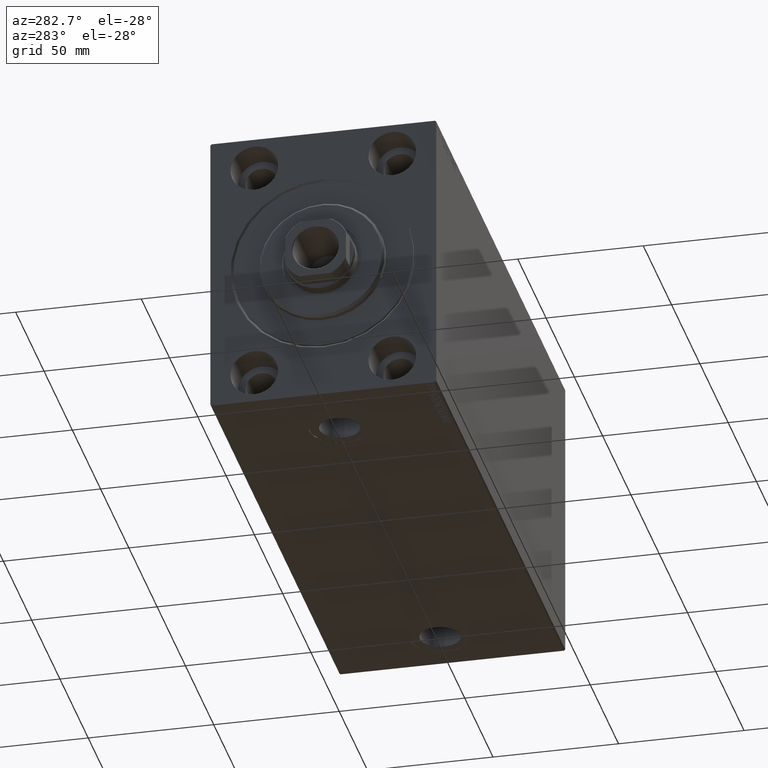
[diagram: clean part render]
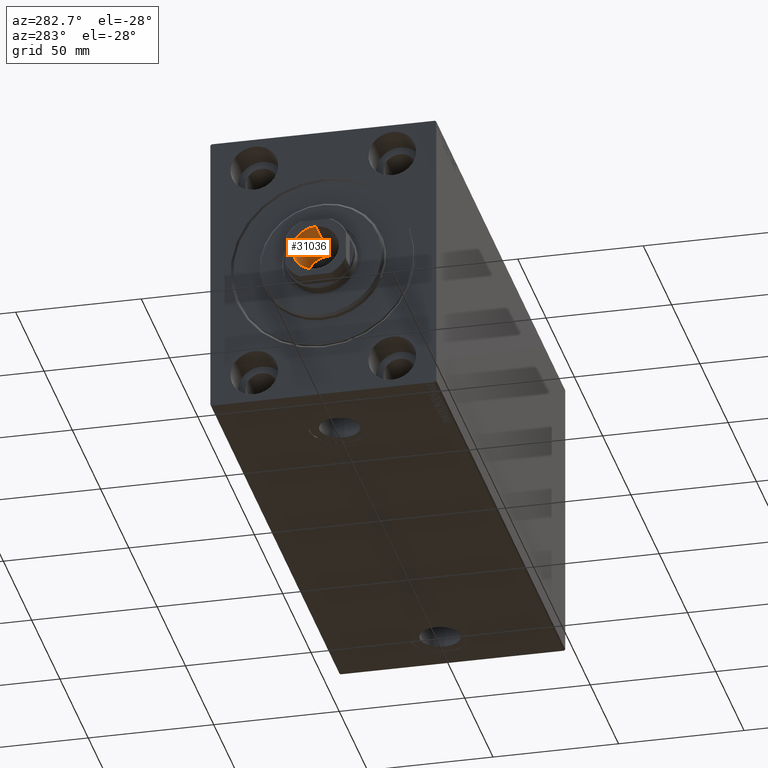
[diagram: same view with one face highlighted and labeled with its STEP entity id]
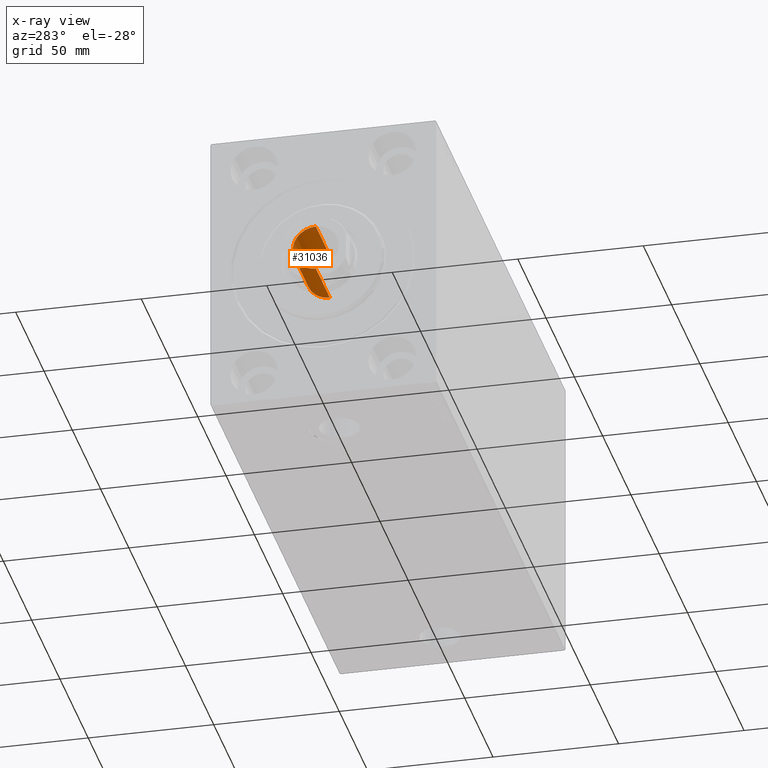
[diagram: x-ray of the same camera — body ghosted, the highlighted face saturated]
A machine part, auxiliary view. The second image highlights one B-rep face of the part: STEP entity #31036.
The next image is the same camera in x-ray: the body ghosted, the highlighted face saturated — about 0% of this face is hidden behind the body in this view.
In plain terms, the highlighted cylindrical surface (edge-blend (fillet) strip) has radius 9.25 mm, axis along (-1, 0, 0).
Its self-contained STEP definition (entity closure, byte-faithful):
#1381 = ORIENTED_EDGE ( 'NONE', *, *, #1982, .T. ) ;
#1402 = LINE ( 'NONE', #19475, #16521 ) ;
#1982 = EDGE_CURVE ( 'NONE', #8960, #21869, #34254, .T. ) ;
#2321 = EDGE_CURVE ( 'NONE', #21869, #3612, #25929, .T. ) ;
#3612 = VERTEX_POINT ( 'NONE', #28458 ) ;
#4010 = DIRECTION ( 'NONE',  ( -0.000000000000000000, -0.000000000000000000, 1.000000000000000000 ) ) ;
#6648 = CARTESIAN_POINT ( 'NONE',  ( 0.000000000000000000, 0.000000000000000000, 223.7000000000000455 ) ) ;
#7151 = CARTESIAN_POINT ( 'NONE',  ( 0.000000000000000000, 0.000000000000000000, 199.0000000000000284 ) ) ;
#8960 = VERTEX_POINT ( 'NONE', #37943 ) ;
#11695 = CARTESIAN_POINT ( 'NONE',  ( -9.249999999999994671, 1.132798289211300909E-15, 199.0000000000000284 ) ) ;
#11809 = FACE_OUTER_BOUND ( 'NONE', #21123, .T. ) ;
#12843 = DIRECTION ( 'NONE',  ( 0.000000000000000000, 0.000000000000000000, 1.000000000000000000 ) ) ;
#14247 = EDGE_CURVE ( 'NONE', #8960, #19619, #45264, .T. ) ;
#14317 = CARTESIAN_POINT ( 'NONE',  ( 0.000000000000000000, 0.000000000000000000, 224.0000000000000284 ) ) ;
#15995 = AXIS2_PLACEMENT_3D ( 'NONE', #7151, #31648, #17904 ) ;
#16349 = ORIENTED_EDGE ( 'NONE', *, *, #33475, .F. ) ;
#16408 = AXIS2_PLACEMENT_3D ( 'NONE', #6648, #12843, #24050 ) ;
#16521 = VECTOR ( 'NONE', #30019, 1000.000000000000000 ) ;
#17904 = DIRECTION ( 'NONE',  ( 1.000000000000000000, 0.000000000000000000, 0.000000000000000000 ) ) ;
#17985 = DIRECTION ( 'NONE',  ( 1.000000000000000000, 0.000000000000000000, 0.000000000000000000 ) ) ;
#19475 = CARTESIAN_POINT ( 'NONE',  ( -9.249999999999994671, 1.132798289211300909E-15, 224.0000000000000284 ) ) ;
#19619 = VERTEX_POINT ( 'NONE', #11695 ) ;
#20076 = AXIS2_PLACEMENT_3D ( 'NONE', #14317, #4010, #17985 ) ;
#21023 = ORIENTED_EDGE ( 'NONE', *, *, #14247, .F. ) ;
#21123 = EDGE_LOOP ( 'NONE', ( #16349, #21023, #1381, #36663 ) ) ;
#21869 = VERTEX_POINT ( 'NONE', #44559 ) ;
#23732 = VECTOR ( 'NONE', #30810, 1000.000000000000000 ) ;
#24050 = DIRECTION ( 'NONE',  ( 1.000000000000000000, 0.000000000000000000, 0.000000000000000000 ) ) ;
#25929 = CIRCLE ( 'NONE', #16408, 9.249999999999994671 ) ;
#28458 = CARTESIAN_POINT ( 'NONE',  ( -9.249999999999994671, 1.132798289211300909E-15, 223.7000000000000455 ) ) ;
#30019 = DIRECTION ( 'NONE',  ( -0.000000000000000000, -0.000000000000000000, 1.000000000000000000 ) ) ;
#30810 = DIRECTION ( 'NONE',  ( -0.000000000000000000, -0.000000000000000000, 1.000000000000000000 ) ) ;
#31026 = CARTESIAN_POINT ( 'NONE',  ( 9.249999999999994671, 0.000000000000000000, 224.0000000000000284 ) ) ;
#31036 = ADVANCED_FACE ( 'NONE', ( #11809 ), #35181, .F. ) ;
#31648 = DIRECTION ( 'NONE',  ( -0.000000000000000000, -0.000000000000000000, 1.000000000000000000 ) ) ;
#33475 = EDGE_CURVE ( 'NONE', #19619, #3612, #1402, .T. ) ;
#34254 = LINE ( 'NONE', #31026, #23732 ) ;
#35181 = CYLINDRICAL_SURFACE ( 'NONE', #20076, 9.249999999999994671 ) ;
#36663 = ORIENTED_EDGE ( 'NONE', *, *, #2321, .T. ) ;
#37943 = CARTESIAN_POINT ( 'NONE',  ( 9.249999999999994671, 0.000000000000000000, 199.0000000000000284 ) ) ;
#44559 = CARTESIAN_POINT ( 'NONE',  ( 9.249999999999994671, 0.000000000000000000, 223.7000000000000455 ) ) ;
#45264 = CIRCLE ( 'NONE', #15995, 9.249999999999994671 ) ;